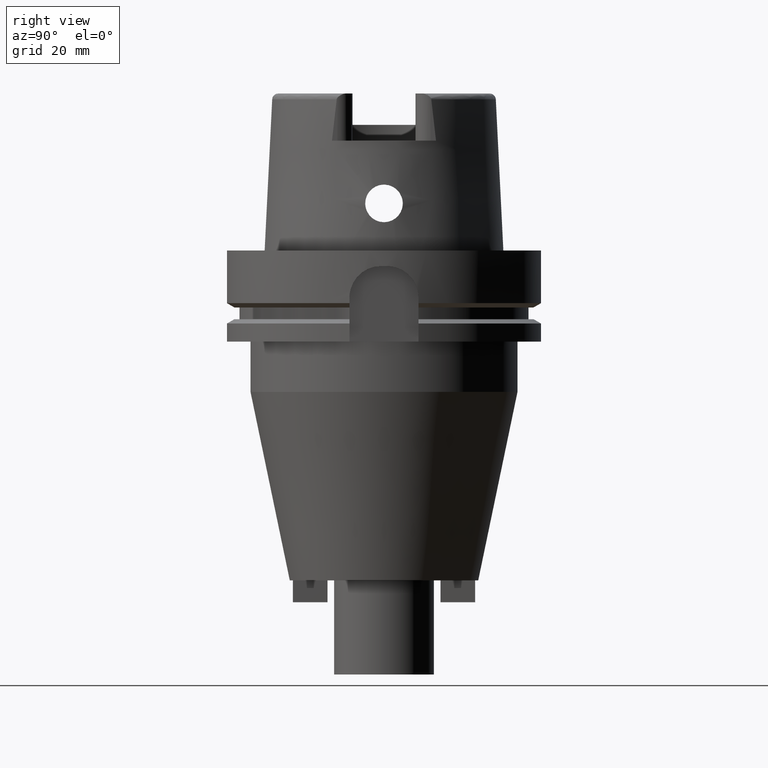
[diagram: clean part render]
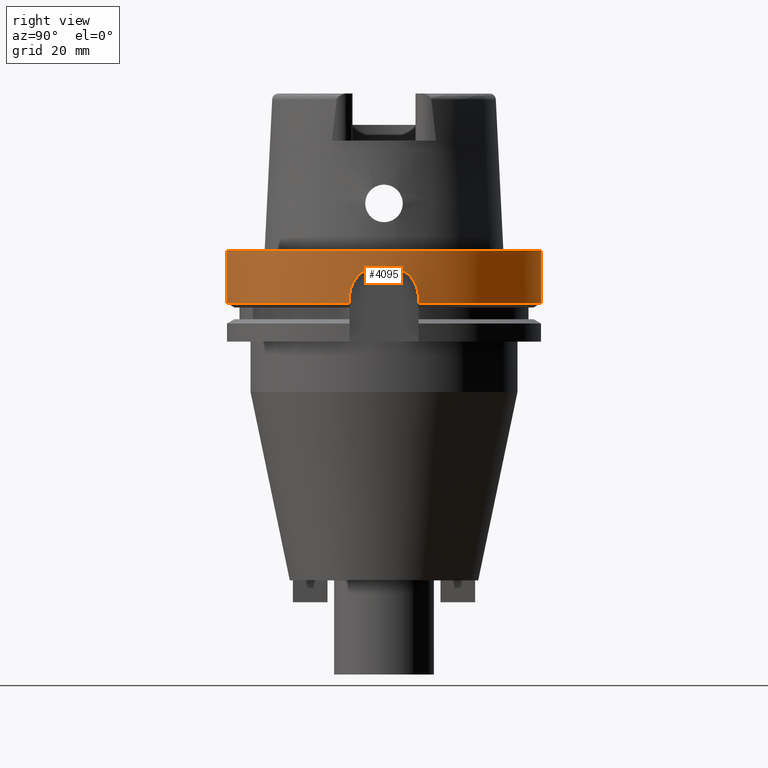
[diagram: same view with one face highlighted and labeled with its STEP entity id]
A machine part, right view. The second image highlights one B-rep face of the part: STEP entity #4095.
In plain terms, the highlighted cylindrical surface (partial cylindrical patch) has radius 50 mm, axis along (0, 0, 1).
Its self-contained STEP definition (entity closure, byte-faithful):
#1551=DIRECTION('',(0.E0,2.969006079282E-14,-1.E0));
#1552=VECTOR('',#1551,1.675240473581E1);
#1553=CARTESIAN_POINT('',(0.E0,-5.E1,0.E0));
#1554=LINE('',#1553,#1552);
#1604=CARTESIAN_POINT('',(4.877499359303E1,1.1E1,-1.675240473581E1));
#1609=CARTESIAN_POINT('',(0.E0,0.E0,-1.675240473581E1));
#1610=DIRECTION('',(0.E0,0.E0,1.E0));
#1611=DIRECTION('',(9.754998718606E-1,2.2E-1,0.E0));
#1612=AXIS2_PLACEMENT_3D('',#1609,#1610,#1611);
#1753=CARTESIAN_POINT('',(4.998999899980E1,-1.E0,-5.E0));
#1754=CARTESIAN_POINT('',(4.997504301820E1,-1.747649504995E0,-5.E0));
#1755=CARTESIAN_POINT('',(4.991291509294E1,-3.209087256428E0,
-5.162327818369E0));
#1756=CARTESIAN_POINT('',(4.972649899334E1,-5.357682436917E0,
-5.904331775835E0));
#1757=CARTESIAN_POINT('',(4.947875385072E1,-7.274178437585E0,
-7.105066867602E0));
#1758=CARTESIAN_POINT('',(4.921266909849E1,-8.876813600713E0,
-8.703268635942E0));
#1759=CARTESIAN_POINT('',(4.897589085151E1,-1.008412619631E1,
-1.061693787722E1));
#1760=CARTESIAN_POINT('',(4.881255513283E1,-1.083556002178E1,
-1.277678054109E1));
#1761=CARTESIAN_POINT('',(4.877499359303E1,-1.1E1,-1.424649556495E1));
#1762=CARTESIAN_POINT('',(4.877499359303E1,-1.1E1,-1.5E1));
#1767=DIRECTION('',(-5.027793947017E-13,6.690209687563E-14,-1.E0));
#1768=VECTOR('',#1767,1.752404735809E0);
#1769=CARTESIAN_POINT('',(4.877499359303E1,-1.1E1,-1.5E1));
#1770=LINE('',#1769,#1768);
#1774=DIRECTION('',(0.E0,-2.969006079282E-14,-1.E0));
#1775=VECTOR('',#1774,1.675240473581E1);
#1776=CARTESIAN_POINT('',(0.E0,5.E1,0.E0));
#1777=LINE('',#1776,#1775);
#1781=DIRECTION('',(4.946700496259E-13,7.095676941355E-14,1.E0));
#1782=VECTOR('',#1781,1.752404735809E0);
#1783=CARTESIAN_POINT('',(4.877499359303E1,1.1E1,-1.675240473581E1));
#1784=LINE('',#1783,#1782);
#1788=CARTESIAN_POINT('',(4.877499359303E1,1.1E1,-1.5E1));
#1789=CARTESIAN_POINT('',(4.877499359303E1,1.1E1,-1.425448395654E1));
#1790=CARTESIAN_POINT('',(4.881177750163E1,1.083892599063E1,-1.279803583097E1));
#1791=CARTESIAN_POINT('',(4.897257891128E1,1.009974257480E1,-1.065171430714E1));
#1792=CARTESIAN_POINT('',(4.920736576664E1,8.905515329642E0,-8.739945530532E0));
#1793=CARTESIAN_POINT('',(4.947305104361E1,7.312330785848E0,-7.135441452962E0));
#1794=CARTESIAN_POINT('',(4.972231634994E1,5.397059518142E0,-5.922392987253E0));
#1795=CARTESIAN_POINT('',(4.991145818504E1,3.235942603121E0,-5.166828100384E0));
#1796=CARTESIAN_POINT('',(4.997483573129E1,1.758011777479E0,-5.E0));
#1797=CARTESIAN_POINT('',(4.998999899980E1,1.E0,-5.E0));
#1802=CARTESIAN_POINT('',(0.E0,0.E0,-5.E0));
#1803=DIRECTION('',(0.E0,0.E0,1.E0));
#1804=DIRECTION('',(9.997999799960E-1,-2.E-2,0.E0));
#1805=AXIS2_PLACEMENT_3D('',#1802,#1803,#1804);
#1856=CARTESIAN_POINT('',(0.E0,0.E0,-1.675240473581E1));
#1857=DIRECTION('',(0.E0,0.E0,1.E0));
#1858=DIRECTION('',(0.E0,-1.E0,0.E0));
#1859=AXIS2_PLACEMENT_3D('',#1856,#1857,#1858);
#2010=CARTESIAN_POINT('',(0.E0,0.E0,0.E0));
#2011=DIRECTION('',(0.E0,0.E0,-1.E0));
#2012=DIRECTION('',(0.E0,1.E0,0.E0));
#2013=AXIS2_PLACEMENT_3D('',#2010,#2011,#2012);
#2719=CARTESIAN_POINT('',(0.E0,-5.E1,-1.675240473581E1));
#2720=VERTEX_POINT('',#2719);
#2721=CARTESIAN_POINT('',(4.877499359303E1,-1.1E1,-1.675240473581E1));
#2722=VERTEX_POINT('',#2721);
#2723=VERTEX_POINT('',#1604);
#2724=CARTESIAN_POINT('',(0.E0,5.E1,-1.675240473581E1));
#2725=VERTEX_POINT('',#2724);
#2727=CARTESIAN_POINT('',(0.E0,5.E1,0.E0));
#2728=VERTEX_POINT('',#2727);
#2729=CARTESIAN_POINT('',(0.E0,-5.E1,0.E0));
#2730=VERTEX_POINT('',#2729);
#2733=CARTESIAN_POINT('',(4.998999899980E1,-1.E0,-5.E0));
#2734=CARTESIAN_POINT('',(4.998999899980E1,1.E0,-5.E0));
#2735=VERTEX_POINT('',#2733);
#2736=VERTEX_POINT('',#2734);
#2737=VERTEX_POINT('',#1762);
#2738=CARTESIAN_POINT('',(4.877499359303E1,1.1E1,-1.5E1));
#2739=VERTEX_POINT('',#2738);
#4073=CARTESIAN_POINT('',(0.E0,0.E0,-1.4425E2));
#4074=DIRECTION('',(0.E0,0.E0,1.E0));
#4075=DIRECTION('',(0.E0,1.E0,0.E0));
#4076=AXIS2_PLACEMENT_3D('',#4073,#4074,#4075);
#4077=CYLINDRICAL_SURFACE('',#4076,5.E1);
#4079=ORIENTED_EDGE('',*,*,#4078,.F.);
#4081=ORIENTED_EDGE('',*,*,#4080,.T.);
#4082=ORIENTED_EDGE('',*,*,#3823,.T.);
#4084=ORIENTED_EDGE('',*,*,#4083,.F.);
#4085=ORIENTED_EDGE('',*,*,#3979,.F.);
#4087=ORIENTED_EDGE('',*,*,#4086,.F.);
#4088=ORIENTED_EDGE('',*,*,#3975,.T.);
#4089=ORIENTED_EDGE('',*,*,#4005,.F.);
#4090=ORIENTED_EDGE('',*,*,#3771,.T.);
#4092=ORIENTED_EDGE('',*,*,#4091,.T.);
#4093=EDGE_LOOP('',(#4079,#4081,#4082,#4084,#4085,#4087,#4088,#4089,#4090,
#4092));
#4094=FACE_OUTER_BOUND('',#4093,.F.);
#1613=CIRCLE('',#1612,5.E1);
#1763=B_SPLINE_CURVE_WITH_KNOTS('',3,(#1753,#1754,#1755,#1756,#1757,#1758,#1759,
#1760,#1761,#1762),.UNSPECIFIED.,.F.,.F.,(4,1,1,1,1,1,1,4),(0.E0,
1.428571428571E-1,2.857142857143E-1,4.285714285714E-1,5.714285714286E-1,
7.142857142857E-1,8.571428571429E-1,1.E0),.UNSPECIFIED.);
#1798=B_SPLINE_CURVE_WITH_KNOTS('',3,(#1788,#1789,#1790,#1791,#1792,#1793,#1794,
#1795,#1796,#1797),.UNSPECIFIED.,.F.,.F.,(4,1,1,1,1,1,1,4),(0.E0,
1.428571428571E-1,2.857142857143E-1,4.285714285714E-1,5.714285714286E-1,
7.142857142857E-1,8.571428571429E-1,1.E0),.UNSPECIFIED.);
#1806=CIRCLE('',#1805,5.E1);
#1860=CIRCLE('',#1859,5.E1);
#2014=CIRCLE('',#2013,5.E1);
#3771=EDGE_CURVE('',#2723,#2739,#1784,.T.);
#3823=EDGE_CURVE('',#2737,#2722,#1770,.T.);
#3975=EDGE_CURVE('',#2728,#2725,#1777,.T.);
#3979=EDGE_CURVE('',#2730,#2720,#1554,.T.);
#4005=EDGE_CURVE('',#2723,#2725,#1613,.T.);
#4078=EDGE_CURVE('',#2735,#2736,#1806,.T.);
#4080=EDGE_CURVE('',#2735,#2737,#1763,.T.);
#4083=EDGE_CURVE('',#2720,#2722,#1860,.T.);
#4086=EDGE_CURVE('',#2728,#2730,#2014,.T.);
#4091=EDGE_CURVE('',#2739,#2736,#1798,.T.);
#4095=ADVANCED_FACE('',(#4094),#4077,.T.);